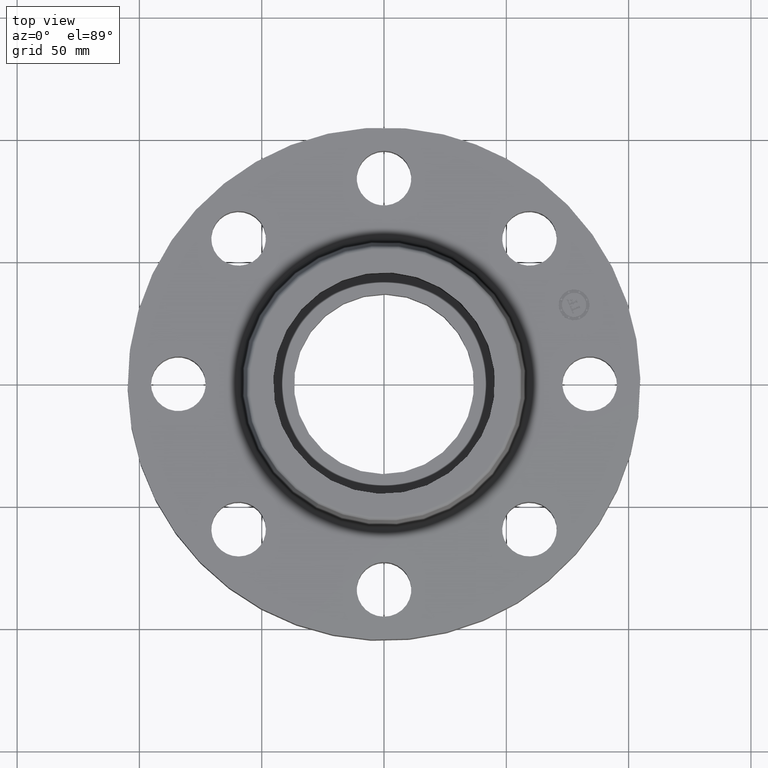
[diagram: clean part render]
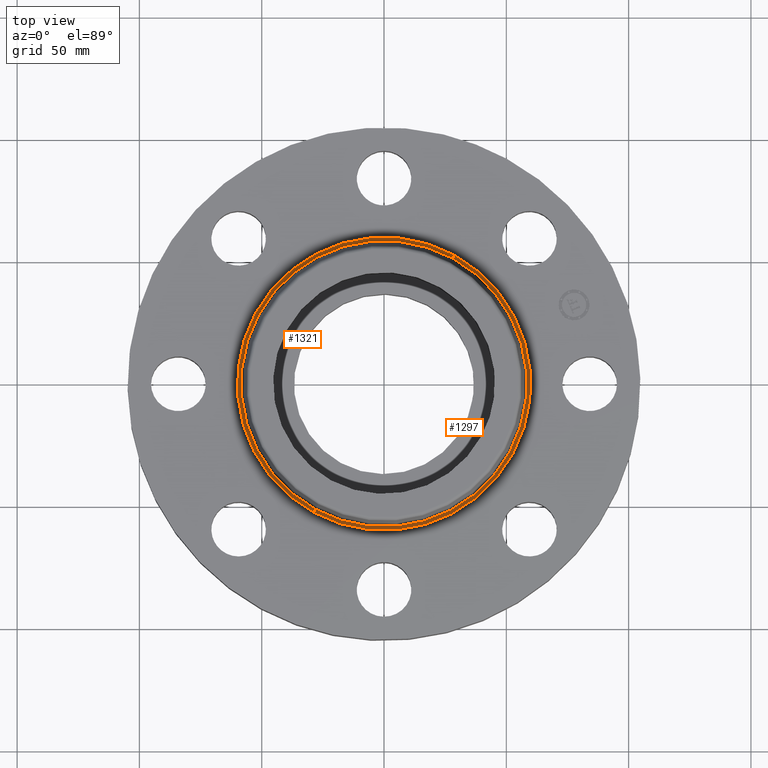
[diagram: same view with one multi-face feature highlighted, each face labeled with its STEP entity id]
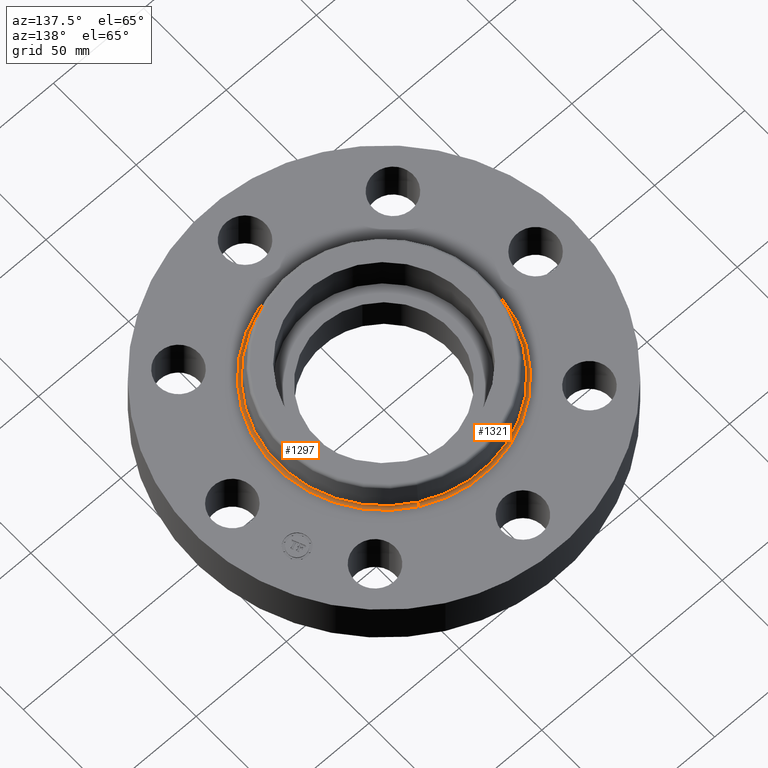
[diagram: same view with one multi-face feature highlighted, each face labeled with its STEP entity id]
A machine part, top view. The highlighted faces form ONE feature: a constant-radius fillet chain: 2 tangent blend faces with common blend radius 1.524 mm. The faces share edges in the B-rep.
A second angle (auxiliary view) of the same feature is appended — it is thin or edge-on in the first view.
Their STEP definitions:
[1] entity #1321 (Torus):
#584=AXIS2_PLACEMENT_3D('Circle Axis2P3D',#582,#583,$) ;
#1283=AXIS2_PLACEMENT_3D('Circle Axis2P3D',#1281,#1282,$) ;
#1288=AXIS2_PLACEMENT_3D('Circle Axis2P3D',#1286,#1287,$) ;
#1308=AXIS2_PLACEMENT_3D('Torus Axis2P3D',#1305,#1306,#1307) ;
#1312=AXIS2_PLACEMENT_3D('Circle Axis2P3D',#1310,#1311,$) ;
#548=CARTESIAN_POINT('Vertex',(1.10328162249,2.01954346356,1.10958110934)) ;
#550=CARTESIAN_POINT('Vertex',(-1.10328162249,-2.01954346356,1.10958110934)) ;
#582=CARTESIAN_POINT('Axis2P3D Location',(0.,0.,1.10958110934)) ;
#1276=CARTESIAN_POINT('Vertex',(1.13161014174,2.07139847022,1.06)) ;
#1278=CARTESIAN_POINT('Vertex',(-1.13161014174,-2.07139847022,1.06)) ;
#1281=CARTESIAN_POINT('Axis2P3D Location',(1.13161014174,2.07139847022,1.12)) ;
#1286=CARTESIAN_POINT('Axis2P3D Location',(-1.13161014174,-2.07139847022,1.12)) ;
#1305=CARTESIAN_POINT('Axis2P3D Location',(0.,0.,1.12)) ;
#1310=CARTESIAN_POINT('Axis2P3D Location',(0.,0.,1.06)) ;
#583=DIRECTION('Axis2P3D Direction',(-0.,0.,-0.0393700787402)) ;
#1282=DIRECTION('Axis2P3D Direction',(-0.0345504945626,0.0188750212049,0.)) ;
#1287=DIRECTION('Axis2P3D Direction',(0.0345504945626,-0.0188750212049,0.)) ;
#1306=DIRECTION('Axis2P3D Direction',(0.,0.,-0.0393700787402)) ;
#1307=DIRECTION('Axis2P3D XDirection',(-0.0188750212049,-0.0345504945626,0.)) ;
#1311=DIRECTION('Axis2P3D Direction',(-0.,0.,-0.0393700787402)) ;
#1316=ORIENTED_EDGE('',*,*,#1314,.F.) ;
#1317=ORIENTED_EDGE('',*,*,#1290,.T.) ;
#1318=ORIENTED_EDGE('',*,*,#586,.T.) ;
#1319=ORIENTED_EDGE('',*,*,#1285,.F.) ;
#1321=ADVANCED_FACE('PartBody',(#1320),#1309,.F.) ;
#585=CIRCLE('generated circle',#584,2.30125751271) ;
#1284=CIRCLE('generated circle',#1283,0.0600000000002) ;
#1289=CIRCLE('generated circle',#1288,0.0600000000002) ;
#1313=CIRCLE('generated circle',#1312,2.36034597788) ;
#1309=TOROIDAL_SURFACE('homeo Torus',#1308,2.36034597788,0.0600000000002) ;
#586=EDGE_CURVE('',#551,#549,#585,.T.) ;
#1285=EDGE_CURVE('',#1277,#549,#1284,.T.) ;
#1290=EDGE_CURVE('',#1279,#551,#1289,.T.) ;
#1314=EDGE_CURVE('',#1279,#1277,#1313,.T.) ;
#1315=EDGE_LOOP('',(#1316,#1317,#1318,#1319)) ;
#1320=FACE_OUTER_BOUND('',#1315,.T.) ;
#549=VERTEX_POINT('',#548) ;
#551=VERTEX_POINT('',#550) ;
#1277=VERTEX_POINT('',#1276) ;
#1279=VERTEX_POINT('',#1278) ;
[2] entity #1297 (Torus):
#546=AXIS2_PLACEMENT_3D('Circle Axis2P3D',#544,#545,$) ;
#1270=AXIS2_PLACEMENT_3D('Torus Axis2P3D',#1267,#1268,#1269) ;
#1274=AXIS2_PLACEMENT_3D('Circle Axis2P3D',#1272,#1273,$) ;
#1283=AXIS2_PLACEMENT_3D('Circle Axis2P3D',#1281,#1282,$) ;
#1288=AXIS2_PLACEMENT_3D('Circle Axis2P3D',#1286,#1287,$) ;
#544=CARTESIAN_POINT('Axis2P3D Location',(0.,0.,1.10958110934)) ;
#548=CARTESIAN_POINT('Vertex',(1.10328162249,2.01954346356,1.10958110934)) ;
#550=CARTESIAN_POINT('Vertex',(-1.10328162249,-2.01954346356,1.10958110934)) ;
#1267=CARTESIAN_POINT('Axis2P3D Location',(0.,0.,1.12)) ;
#1272=CARTESIAN_POINT('Axis2P3D Location',(0.,0.,1.06)) ;
#1276=CARTESIAN_POINT('Vertex',(1.13161014174,2.07139847022,1.06)) ;
#1278=CARTESIAN_POINT('Vertex',(-1.13161014174,-2.07139847022,1.06)) ;
#1281=CARTESIAN_POINT('Axis2P3D Location',(1.13161014174,2.07139847022,1.12)) ;
#1286=CARTESIAN_POINT('Axis2P3D Location',(-1.13161014174,-2.07139847022,1.12)) ;
#545=DIRECTION('Axis2P3D Direction',(-0.,0.,-0.0393700787402)) ;
#1268=DIRECTION('Axis2P3D Direction',(0.,0.,-0.0393700787402)) ;
#1269=DIRECTION('Axis2P3D XDirection',(0.0188750212049,0.0345504945626,0.)) ;
#1273=DIRECTION('Axis2P3D Direction',(-0.,0.,-0.0393700787402)) ;
#1282=DIRECTION('Axis2P3D Direction',(-0.0345504945626,0.0188750212049,0.)) ;
#1287=DIRECTION('Axis2P3D Direction',(0.0345504945626,-0.0188750212049,0.)) ;
#1292=ORIENTED_EDGE('',*,*,#1280,.F.) ;
#1293=ORIENTED_EDGE('',*,*,#1285,.T.) ;
#1294=ORIENTED_EDGE('',*,*,#552,.T.) ;
#1295=ORIENTED_EDGE('',*,*,#1290,.F.) ;
#1297=ADVANCED_FACE('PartBody',(#1296),#1271,.F.) ;
#547=CIRCLE('generated circle',#546,2.30125751271) ;
#1275=CIRCLE('generated circle',#1274,2.36034597788) ;
#1284=CIRCLE('generated circle',#1283,0.0600000000002) ;
#1289=CIRCLE('generated circle',#1288,0.0600000000002) ;
#1271=TOROIDAL_SURFACE('homeo Torus',#1270,2.36034597788,0.0600000000002) ;
#552=EDGE_CURVE('',#549,#551,#547,.T.) ;
#1280=EDGE_CURVE('',#1277,#1279,#1275,.T.) ;
#1285=EDGE_CURVE('',#1277,#549,#1284,.T.) ;
#1290=EDGE_CURVE('',#1279,#551,#1289,.T.) ;
#1291=EDGE_LOOP('',(#1292,#1293,#1294,#1295)) ;
#1296=FACE_OUTER_BOUND('',#1291,.T.) ;
#549=VERTEX_POINT('',#548) ;
#551=VERTEX_POINT('',#550) ;
#1277=VERTEX_POINT('',#1276) ;
#1279=VERTEX_POINT('',#1278) ;